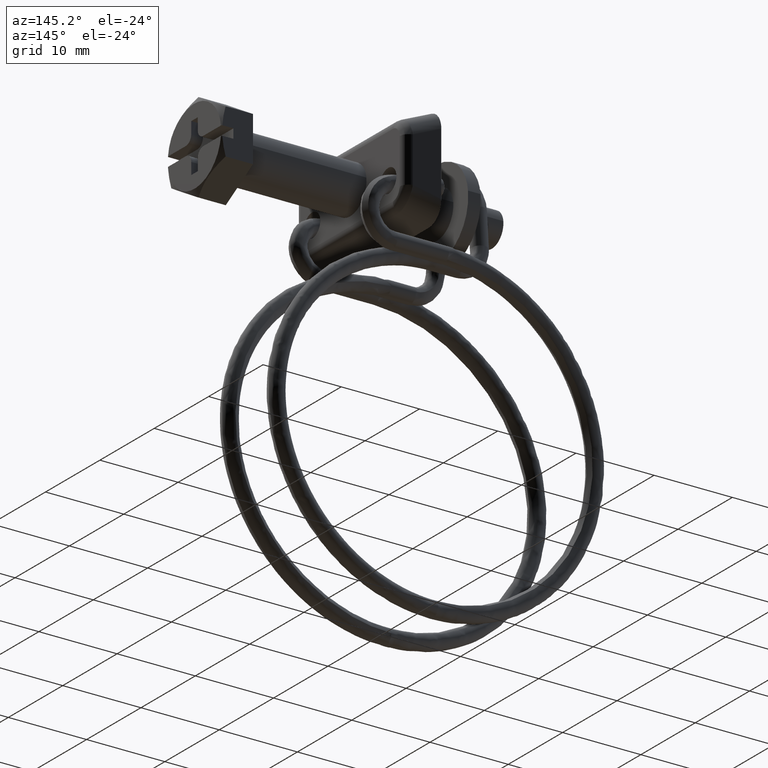
[diagram: clean part render]
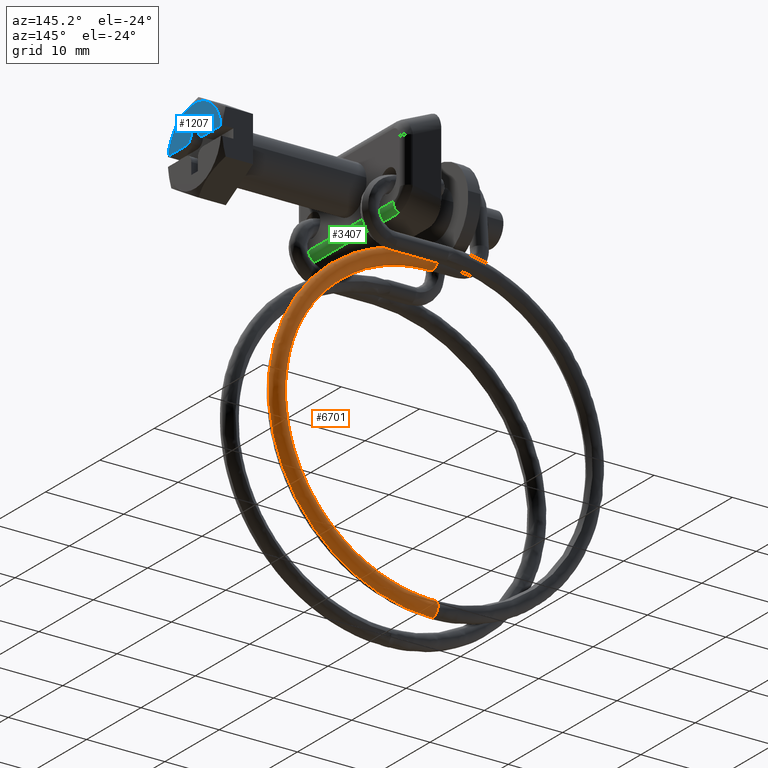
[diagram: same view with three faces highlighted in distinct colors, each labeled with its STEP entity id]
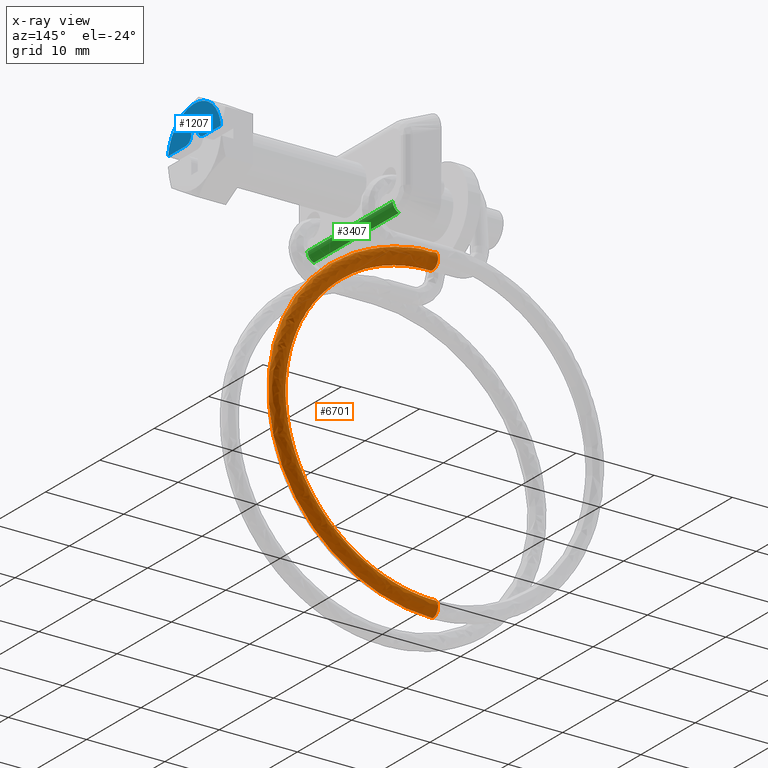
[diagram: x-ray of the same camera — body ghosted, the three highlighted faces saturated]
A machine part, auxiliary view with three faces highlighted in distinct colors.
The next image is the same camera in x-ray (body ghosted, the three faces saturated) — at least one of them is partly hidden behind the body in this view.
Their STEP definitions:

[orange] entity #6701 — the highlighted face is a freeform B-spline surface patch.
#5486=CARTESIAN_POINT('',(-23.449996893050059,4.751533273924485,-8.742256293438331));
#5487=VERTEX_POINT('',#5486);
#5493=CARTESIAN_POINT('',(-23.449996910569531,4.300002000000001,-8.850001000000328));
#5494=VERTEX_POINT('',#5493);
#5495=CARTESIAN_POINT('',(-23.449996910569531,4.300002000000001,-8.850001000000328));
#5496=CARTESIAN_POINT('',(-23.449996910569535,4.538622695376612,-8.850001000000326));
#5497=CARTESIAN_POINT('',(-23.449996893050059,4.751533273924485,-8.742256293438331));
#5505=(BOUNDED_CURVE()B_SPLINE_CURVE(2,(#5495,#5496,#5497),.UNSPECIFIED.,.F.,.U.)B_SPLINE_CURVE_WITH_KNOTS((3,3),(0.0,0.076776565671012),.UNSPECIFIED.)CURVE()GEOMETRIC_REPRESENTATION_ITEM()RATIONAL_B_SPLINE_CURVE((1.0,0.910050658204699,0.875349328788688))REPRESENTATION_ITEM(''));
#5506=EDGE_CURVE('',#5494,#5487,#5505,.T.);
#5508=CARTESIAN_POINT('',(-23.449996729084670,3.306690361544146,-7.734536767823371));
#5509=VERTEX_POINT('',#5508);
#5510=CARTESIAN_POINT('',(-23.449996729084663,3.306690361544147,-7.734536767823371));
#5511=CARTESIAN_POINT('',(-23.449996738549068,3.300002000000000,-7.792075168023835));
#5512=CARTESIAN_POINT('',(-23.449996747967901,3.300002000000000,-7.850001000000341));
#5513=CARTESIAN_POINT('',(-23.449996910569535,3.300001999999999,-8.850001000000328));
#5514=CARTESIAN_POINT('',(-23.449996910569531,4.300002000000001,-8.850001000000328));
#5522=(BOUNDED_CURVE()B_SPLINE_CURVE(2,(#5510,#5511,#5512,#5513,#5514),.UNSPECIFIED.,.F.,.U.)B_SPLINE_CURVE_WITH_KNOTS((3,2,3),(0.729999999029387,0.750000000000000,1.0),.UNSPECIFIED.)CURVE()GEOMETRIC_REPRESENTATION_ITEM()RATIONAL_B_SPLINE_CURVE((0.956886116280258,0.976568541357780,1.0,0.707106781186548,1.0))REPRESENTATION_ITEM(''));
#5523=EDGE_CURVE('',#5509,#5494,#5522,.T.);
#5525=CARTESIAN_POINT('',(-23.449997579127619,4.300001999997960,-6.850001000000157));
#5526=VERTEX_POINT('',#5525);
#5540=CARTESIAN_POINT('',(-23.449996741821160,5.299050221565347,-7.806381612256867));
#5541=VERTEX_POINT('',#5540);
#5542=CARTESIAN_POINT('',(-23.449996741821156,5.299050221565347,-7.806381612256867));
#5543=CARTESIAN_POINT('',(-23.449996627808098,5.257293741529365,-6.850001000000344));
#5544=CARTESIAN_POINT('',(-23.449997579127619,4.300001999997960,-6.850001000000157));
#5552=(BOUNDED_CURVE()B_SPLINE_CURVE(2,(#5542,#5543,#5544),.UNSPECIFIED.,.F.,.U.)B_SPLINE_CURVE_WITH_KNOTS((3,3),(0.257645461561753,0.500000000000000),.UNSPECIFIED.)CURVE()GEOMETRIC_REPRESENTATION_ITEM()RATIONAL_B_SPLINE_CURVE((0.982633425598292,0.716063996571093,1.0))REPRESENTATION_ITEM(''));
#5553=EDGE_CURVE('',#5541,#5526,#5552,.T.);
#5655=CARTESIAN_POINT('',(-23.449996893050066,4.751533273924487,-8.742256293438331));
#5656=CARTESIAN_POINT('',(-23.449996847919007,5.300002000000001,-8.464700324390263));
#5657=CARTESIAN_POINT('',(-23.449996747967901,5.300002000000000,-7.850001000000341));
#5658=CARTESIAN_POINT('',(-23.449996744419920,5.300002000000000,-7.828180921999513));
#5659=CARTESIAN_POINT('',(-23.449996741821160,5.299050221565347,-7.806381612256867));
#5667=(BOUNDED_CURVE()B_SPLINE_CURVE(2,(#5655,#5656,#5657,#5658,#5659),.UNSPECIFIED.,.F.,.U.)B_SPLINE_CURVE_WITH_KNOTS((3,2,3),(0.076776565671012,0.250000000000000,0.257645461561753),.UNSPECIFIED.)CURVE()GEOMETRIC_REPRESENTATION_ITEM()RATIONAL_B_SPLINE_CURVE((0.875349328788688,0.797056122981848,1.0,0.991042784615455,0.982633425598292))REPRESENTATION_ITEM(''));
#5668=EDGE_CURVE('',#5487,#5541,#5667,.T.);
#6563=CARTESIAN_POINT('',(-26.249919368055743,3.309339985532244,-47.792666338283702));
#6564=CARTESIAN_POINT('',(-3.165674999504132,3.309339985532244,-51.033658543090056));
#6565=CARTESIAN_POINT('',(-3.312139164683596,3.309339985532239,-27.723469423588238));
#6566=CARTESIAN_POINT('',(-3.457107784048210,3.309339985532235,-4.651300680867604));
#6567=CARTESIAN_POINT('',(-26.297860011985140,3.309339985532235,-7.914125232566569));
#6568=CARTESIAN_POINT('',(-26.248328471206236,3.308009898941750,-47.781335039311422));
#6569=CARTESIAN_POINT('',(-3.177200427381115,3.308009898941750,-51.020485732413270));
#6570=CARTESIAN_POINT('',(-3.323581372528742,3.308009898941746,-27.723541318046546));
#6571=CARTESIAN_POINT('',(-3.468467621621394,3.308009898941741,-4.664482038756585));
#6572=CARTESIAN_POINT('',(-26.296241875558557,3.308009898941742,-7.925452673746715));
#6573=CARTESIAN_POINT('',(-26.238750342011311,3.300001999995929,-47.713113994348397));
#6574=CARTESIAN_POINT('',(-3.246590241853258,3.300001999995929,-50.941177710299570));
#6575=CARTESIAN_POINT('',(-3.392470153752385,3.300001999995926,-27.723974164720598));
#6576=CARTESIAN_POINT('',(-3.536860485647806,3.300001999995923,-4.743841520085153));
#6577=CARTESIAN_POINT('',(-26.286499748183374,3.300001999995923,-7.993650492545618));
#6578=CARTESIAN_POINT('',(-26.230696641953472,3.300001999995929,-47.655750826386893));
#6579=CARTESIAN_POINT('',(-3.304936161129930,3.300001999995929,-50.874492138484193));
#6580=CARTESIAN_POINT('',(-3.450394782877265,3.300001999995926,-27.724338120688721));
#6581=CARTESIAN_POINT('',(-3.594368126415275,3.300001999995923,-4.810570361005949));
#6582=CARTESIAN_POINT('',(-26.278308151452087,3.300001999995922,-8.050994130956459));
#6583=CARTESIAN_POINT('',(-26.091661809855793,3.300001999995928,-46.665463335067543));
#6584=CARTESIAN_POINT('',(-4.312189353073431,3.300001999995929,-49.723267581559973));
#6585=CARTESIAN_POINT('',(-4.450375043733403,3.300001999995925,-27.730621264654282));
#6586=CARTESIAN_POINT('',(-4.587149720094512,3.300001999995921,-5.962541892955644));
#6587=CARTESIAN_POINT('',(-26.136892743879475,3.300001999995921,-9.040944474408633));
#6588=CARTESIAN_POINT('',(-26.091661809855790,4.300001999995929,-46.665463335067543));
#6589=CARTESIAN_POINT('',(-4.312189353073431,4.300001999995929,-49.723267581559980));
#6590=CARTESIAN_POINT('',(-4.450375043733402,4.300001999995925,-27.730621264654278));
#6591=CARTESIAN_POINT('',(-4.587149720094512,4.300001999995922,-5.962541892955645));
#6592=CARTESIAN_POINT('',(-26.136892743879478,4.300001999995922,-9.040944474408633));
#6593=CARTESIAN_POINT('',(-26.091661809855793,5.300001999995928,-46.665463335067543));
#6594=CARTESIAN_POINT('',(-4.312189353073431,5.300001999995929,-49.723267581559973));
#6595=CARTESIAN_POINT('',(-4.450375043733403,5.300001999995925,-27.730621264654282));
#6596=CARTESIAN_POINT('',(-4.587149720094512,5.300001999995920,-5.962541892955644));
#6597=CARTESIAN_POINT('',(-26.136892743879475,5.300001999995920,-9.040944474408633));
#6598=CARTESIAN_POINT('',(-26.230696641953472,5.300001999995929,-47.655750826386893));
#6599=CARTESIAN_POINT('',(-3.304936161129930,5.300001999995929,-50.874492138484193));
#6600=CARTESIAN_POINT('',(-3.450394782877265,5.300001999995925,-27.724338120688721));
#6601=CARTESIAN_POINT('',(-3.594368126415275,5.300001999995922,-4.810570361005949));
#6602=CARTESIAN_POINT('',(-26.278308151452087,5.300001999995922,-8.050994130956459));
#6603=CARTESIAN_POINT('',(-26.369731474051143,5.300001999995930,-48.646038317706250));
#6604=CARTESIAN_POINT('',(-2.297682969186426,5.300001999995929,-52.025716695408398));
#6605=CARTESIAN_POINT('',(-2.450414522021128,5.300001999995925,-27.718054976723160));
#6606=CARTESIAN_POINT('',(-2.601586532736042,5.300001999995920,-3.658598829056249));
#6607=CARTESIAN_POINT('',(-26.419723559024685,5.300001999995922,-7.061043787504289));
#6608=CARTESIAN_POINT('',(-26.369731474051132,4.289161439346738,-48.646038317706228));
#6609=CARTESIAN_POINT('',(-2.297682969186425,4.289161439346739,-52.025716695408398));
#6610=CARTESIAN_POINT('',(-2.450414522021126,4.289161439346734,-27.718054976723156));
#6611=CARTESIAN_POINT('',(-2.601586532736040,4.289161439346730,-3.658598829056249));
#6612=CARTESIAN_POINT('',(-26.419723559024689,4.289161439346732,-7.061043787504290));
#6613=CARTESIAN_POINT('',(-26.369731474051147,4.278417798394372,-48.646038317706264));
#6614=CARTESIAN_POINT('',(-2.297682969186425,4.278417798394371,-52.025716695408398));
#6615=CARTESIAN_POINT('',(-2.450414522021128,4.278417798394369,-27.718054976723174));
#6616=CARTESIAN_POINT('',(-2.601586532736040,4.278417798394362,-3.658598829056250));
#6617=CARTESIAN_POINT('',(-26.419723559024700,4.278417798394366,-7.061043787504292));
#6625=(BOUNDED_SURFACE()B_SPLINE_SURFACE(2,2,((#6563,#6568,#6573,#6578,#6583,#6588,#6593,#6598,#6603,#6608,#6613),(#6564,#6569,#6574,#6579,#6584,#6589,#6594,#6599,#6604,#6609,#6614),(#6565,#6570,#6575,#6580,#6585,#6590,#6595,#6600,#6605,#6610,#6615),(#6566,#6571,#6576,#6581,#6586,#6591,#6596,#6601,#6606,#6611,#6616),(#6567,#6572,#6577,#6582,#6587,#6592,#6597,#6602,#6607,#6612,#6617)),.UNSPECIFIED.,.F.,.F.,.U.)B_SPLINE_SURFACE_WITH_KNOTS((3,2,3),(3,1,2,2,2,1,3),(0.0,38.436924069261707,76.616359124036180),(0.0,0.025522026659387,0.158070240210830,1.814924489703211,3.471778739195592,5.128632988687974,5.154148575128889),.UNSPECIFIED.)GEOMETRIC_REPRESENTATION_ITEM()RATIONAL_B_SPLINE_SURFACE(((0.949306499144447,0.953096327438177,0.976568564840903,1.0,0.707106781186548,1.0,0.707106781186548,1.0,0.707106781186548,1.004510561049581,1.009021122099161),(0.620597386593717,0.623074939983321,0.638419624974698,0.653737636003782,0.462262315535137,0.653737636003782,0.462262315535137,0.653737636003782,0.462262315535137,0.656686359521386,0.659635083038989),(0.949306499144447,0.953096327438177,0.976568564840903,1.0,0.707106781186548,1.0,0.707106781186548,1.0,0.707106781186548,1.004510561049581,1.009021122099161),(0.622799409453069,0.625285753774309,0.640684885252008,0.656057248122035,0.463902528993676,0.656057248122035,0.463902528993676,0.656057248122035,0.463902528993676,0.659016434391709,0.661975620661383),(0.944931956134905,0.948704320346293,0.972068394250569,0.995391853933915,0.703848329854521,0.995391853933915,0.703848329854521,0.995391853933915,0.703848329854521,0.999881629659339,1.004371405384763)))REPRESENTATION_ITEM('')SURFACE());
#6626=ORIENTED_EDGE('',*,*,#5523,.T.);
#6627=ORIENTED_EDGE('',*,*,#5506,.T.);
#6628=ORIENTED_EDGE('',*,*,#5668,.T.);
#6629=ORIENTED_EDGE('',*,*,#5553,.T.);
#6630=CARTESIAN_POINT('',(-23.450020250960460,4.300001999995929,-48.850000999980317));
#6631=VERTEX_POINT('',#6630);
#6632=CARTESIAN_POINT('',(-23.450020250960463,4.300001999995929,-48.850000999980317));
#6633=CARTESIAN_POINT('',(-2.317636713922446,4.300001999995931,-48.850021378612198));
#6634=CARTESIAN_POINT('',(-2.450414522021127,4.300001999995925,-27.718054976723160));
#6635=CARTESIAN_POINT('',(-2.581534088715346,4.300001999995923,-6.850002418172166));
#6636=CARTESIAN_POINT('',(-23.449997579127622,4.300001999997960,-6.850001000000157));
#6644=(BOUNDED_CURVE()B_SPLINE_CURVE(2,(#6632,#6633,#6634,#6635,#6636),.UNSPECIFIED.,.F.,.U.)B_SPLINE_CURVE_WITH_KNOTS((3,2,3),(-3.821090300398721,-2.0,-0.194543891220019),.UNSPECIFIED.)CURVE()GEOMETRIC_REPRESENTATION_ITEM()RATIONAL_B_SPLINE_CURVE((0.943592005182663,0.684712483766678,1.0,0.687419249841216,0.939189324543638))REPRESENTATION_ITEM(''));
#6645=EDGE_CURVE('',#6631,#5526,#6644,.T.);
#6646=ORIENTED_EDGE('',*,*,#6645,.F.);
#6647=CARTESIAN_POINT('',(-23.449999999999601,5.028950006538346,-47.165464279957057));
#6648=VERTEX_POINT('',#6647);
#6649=CARTESIAN_POINT('',(-23.449999999999601,5.028950006538346,-47.165464279957057));
#6650=CARTESIAN_POINT('',(-23.450001104256788,5.200678332607465,-47.348831948192839));
#6651=CARTESIAN_POINT('',(-23.450003198855619,5.300001999995931,-47.598673610792623));
#6652=CARTESIAN_POINT('',(-23.450008394579051,5.300001999995931,-48.111800387790822));
#6653=CARTESIAN_POINT('',(-23.450011501358500,5.192228903605739,-48.371987658751941));
#6654=CARTESIAN_POINT('',(-23.450016872530298,4.821988658759210,-48.742227903593360));
#6655=CARTESIAN_POINT('',(-23.450019103847868,4.561801387795079,-48.850000999981418));
#6656=CARTESIAN_POINT('',(-23.450020250960460,4.300001999995929,-48.850000999980317));
#6657=B_SPLINE_CURVE_WITH_KNOTS('',3,(#6649,#6650,#6651,#6652,#6653,#6654,#6655,#6656),.UNSPECIFIED.,.F.,.U.,(4,2,2,4),(0.130000011021381,0.250000000000000,0.375000000000000,0.500000000000000),.UNSPECIFIED.);
#6658=EDGE_CURVE('',#6648,#6631,#6657,.T.);
#6659=ORIENTED_EDGE('',*,*,#6658,.F.);
#6660=CARTESIAN_POINT('',(-23.449999999999601,4.300001999995930,-46.850000999999800));
#6661=VERTEX_POINT('',#6660);
#6662=CARTESIAN_POINT('',(-23.449999999999601,4.300001999995930,-46.850000999999800));
#6663=CARTESIAN_POINT('',(-23.449999999999601,4.561801387795080,-46.850000999999800));
#6664=CARTESIAN_POINT('',(-23.449999999999601,4.821988658759211,-46.957774096389997));
#6665=CARTESIAN_POINT('',(-23.449999999999601,5.014513602401641,-47.150299040032422));
#6666=CARTESIAN_POINT('',(-23.449999999999601,5.021794667833571,-47.157823969218740));
#6667=CARTESIAN_POINT('',(-23.449999999999601,5.028950006538346,-47.165464279957057));
#6668=B_SPLINE_CURVE_WITH_KNOTS('',3,(#6662,#6663,#6664,#6665,#6666,#6667),.UNSPECIFIED.,.F.,.U.,(4,2,4),(0.0,0.125000000000000,0.130000011021381),.UNSPECIFIED.);
#6669=EDGE_CURVE('',#6661,#6648,#6668,.T.);
#6670=ORIENTED_EDGE('',*,*,#6669,.F.);
#6671=CARTESIAN_POINT('',(-23.449999999976580,3.306810287594581,-47.965450863443273));
#6672=VERTEX_POINT('',#6671);
#6673=CARTESIAN_POINT('',(-23.449999999976580,3.306810287594581,-47.965450863443273));
#6674=CARTESIAN_POINT('',(-23.449999999976971,3.302226016636949,-47.927164010543642));
#6675=CARTESIAN_POINT('',(-23.449999999977390,3.299886312450008,-47.888606818831782));
#6676=CARTESIAN_POINT('',(-23.449999999980850,3.299904328775286,-47.588213312158757));
#6677=CARTESIAN_POINT('',(-23.449999999984950,3.407698784938896,-47.328023482524323));
#6678=CARTESIAN_POINT('',(-23.449999999993011,3.777981005013296,-46.957778209498528));
#6679=CARTESIAN_POINT('',(-23.449999999996919,4.038188632955446,-46.850002674562049));
#6680=CARTESIAN_POINT('',(-23.449999999999601,4.300001999995930,-46.850000999999800));
#6681=B_SPLINE_CURVE_WITH_KNOTS('',3,(#6673,#6674,#6675,#6676,#6677,#6678,#6679,#6680),.UNSPECIFIED.,.F.,.U.,(4,2,2,4),(0.731573696066977,0.750000000000000,0.875000000000000,1.0),.UNSPECIFIED.);
#6682=EDGE_CURVE('',#6672,#6661,#6681,.T.);
#6683=ORIENTED_EDGE('',*,*,#6682,.F.);
#6684=CARTESIAN_POINT('',(-23.449999999976576,3.306810287594581,-47.965450863443266));
#6685=CARTESIAN_POINT('',(-3.207747848258828,3.306810287589673,-47.965450863420287));
#6686=CARTESIAN_POINT('',(-3.334932832769838,3.306749947808168,-27.723605503069354));
#6687=CARTESIAN_POINT('',(-3.460529533011526,3.306690361548991,-7.734540018357994));
#6688=CARTESIAN_POINT('',(-23.449996729084660,3.306690361544146,-7.734536767823371));
#6696=(BOUNDED_CURVE()B_SPLINE_CURVE(2,(#6684,#6685,#6686,#6687,#6688),.UNSPECIFIED.,.F.,.U.)B_SPLINE_CURVE_WITH_KNOTS((3,2,3),(-3.821089097926426,-2.0,-0.194544008698820),.UNSPECIFIED.)CURVE()GEOMETRIC_REPRESENTATION_ITEM()RATIONAL_B_SPLINE_CURVE((0.902909763856804,0.655192069877949,0.956886118190660,0.657781957012436,0.898697195656550))REPRESENTATION_ITEM(''));
#6697=EDGE_CURVE('',#6672,#5509,#6696,.T.);
#6698=ORIENTED_EDGE('',*,*,#6697,.T.);
#6699=EDGE_LOOP('',(#6626,#6627,#6628,#6629,#6646,#6659,#6670,#6683,#6698));
#6700=FACE_OUTER_BOUND('',#6699,.T.);
#6701=ADVANCED_FACE('',(#6700),#6625,.T.);

[blue] entity #1207 — the highlighted face is a freeform B-spline surface patch.
#759=CARTESIAN_POINT('',(4.0,0.599999000000025,3.099999000000110));
#760=VERTEX_POINT('',#759);
#761=CARTESIAN_POINT('',(4.0,-0.599998000000198,3.099999000000110));
#762=VERTEX_POINT('',#761);
#763=CARTESIAN_POINT('',(4.0,0.599999000000025,3.099999000000110));
#764=CARTESIAN_POINT('',(4.0,-0.599998000000198,3.099999000000110));
#765=QUASI_UNIFORM_CURVE('',1,(#763,#764),.UNSPECIFIED.,.F.,.U.);
#766=EDGE_CURVE('',#760,#762,#765,.T.);
#787=CARTESIAN_POINT('',(4.0,0.599999000000025,1.600000000000000));
#788=VERTEX_POINT('',#787);
#789=CARTESIAN_POINT('',(4.0,0.599999000000025,1.600000000000000));
#790=CARTESIAN_POINT('',(4.0,0.599999000000025,3.099999000000110));
#791=QUASI_UNIFORM_CURVE('',1,(#789,#790),.UNSPECIFIED.,.F.,.U.);
#792=EDGE_CURVE('',#788,#760,#791,.T.);
#818=CARTESIAN_POINT('',(4.0,1.599999000000025,0.600000000000108));
#819=VERTEX_POINT('',#818);
#820=CARTESIAN_POINT('',(4.0,0.599999000000025,1.600000000000000));
#821=CARTESIAN_POINT('',(4.000000000000000,0.599999000000025,0.600000000000000));
#822=CARTESIAN_POINT('',(4.0,1.599999000000025,0.600000000000108));
#830=(BOUNDED_CURVE()B_SPLINE_CURVE(2,(#820,#821,#822),.UNSPECIFIED.,.F.,.U.)CURVE()GEOMETRIC_REPRESENTATION_ITEM()QUASI_UNIFORM_CURVE()RATIONAL_B_SPLINE_CURVE((1.0,0.707106781186548,1.0))REPRESENTATION_ITEM(''));
#831=EDGE_CURVE('',#788,#819,#830,.T.);
#855=CARTESIAN_POINT('',(4.0,4.863124347857450,0.600000000000108));
#856=VERTEX_POINT('',#855);
#864=CARTESIAN_POINT('',(4.0,4.863124347857450,0.600000000000108));
#865=CARTESIAN_POINT('',(4.0,1.599999000000025,0.600000000000108));
#866=QUASI_UNIFORM_CURVE('',1,(#864,#865),.UNSPECIFIED.,.F.,.U.);
#867=EDGE_CURVE('',#856,#819,#866,.T.);
#1099=CARTESIAN_POINT('',(4.0,-1.599998000000085,0.600000000000000));
#1100=VERTEX_POINT('',#1099);
#1106=CARTESIAN_POINT('',(4.0,-4.863124347857450,0.600000000000108));
#1107=VERTEX_POINT('',#1106);
#1108=CARTESIAN_POINT('',(4.0,-1.599998000000085,0.600000000000000));
#1109=CARTESIAN_POINT('',(4.0,-4.863124347857450,0.600000000000108));
#1110=QUASI_UNIFORM_CURVE('',1,(#1108,#1109),.UNSPECIFIED.,.F.,.U.);
#1111=EDGE_CURVE('',#1100,#1107,#1110,.T.);
#1137=CARTESIAN_POINT('',(4.0,-0.599998000000085,1.600000000000000));
#1138=VERTEX_POINT('',#1137);
#1139=CARTESIAN_POINT('',(4.0,-1.599998000000085,0.600000000000000));
#1140=CARTESIAN_POINT('',(4.000000000000000,-0.599998000000085,0.600000000000000));
#1141=CARTESIAN_POINT('',(4.0,-0.599998000000085,1.600000000000000));
#1149=(BOUNDED_CURVE()B_SPLINE_CURVE(2,(#1139,#1140,#1141),.UNSPECIFIED.,.F.,.U.)CURVE()GEOMETRIC_REPRESENTATION_ITEM()QUASI_UNIFORM_CURVE()RATIONAL_B_SPLINE_CURVE((1.0,0.707106781186548,1.0))REPRESENTATION_ITEM(''));
#1150=EDGE_CURVE('',#1100,#1138,#1149,.T.);
#1167=CARTESIAN_POINT('',(4.0,-0.599998000000198,3.099999000000110));
#1168=CARTESIAN_POINT('',(4.0,-0.599998000000085,1.600000000000000));
#1169=QUASI_UNIFORM_CURVE('',1,(#1167,#1168),.UNSPECIFIED.,.F.,.U.);
#1170=EDGE_CURVE('',#762,#1138,#1169,.T.);
#1178=CARTESIAN_POINT('',(4.0,-5.348950542660116,0.385215133674923));
#1179=CARTESIAN_POINT('',(4.0,5.348950716578997,0.385215133674923));
#1180=CARTESIAN_POINT('',(4.0,-5.348950542660116,5.114782472336816));
#1181=CARTESIAN_POINT('',(4.0,5.348950716578997,5.114782472336816));
#1182=B_SPLINE_SURFACE_WITH_KNOTS('',1,1,((#1178,#1180),(#1179,#1181)),.UNSPECIFIED.,.F.,.F.,.U.,(2,2),(2,2),(0.0,10.697901259239110),(0.0,4.729567338661893),.UNSPECIFIED.);
#1183=ORIENTED_EDGE('',*,*,#1111,.F.);
#1184=ORIENTED_EDGE('',*,*,#1150,.T.);
#1185=ORIENTED_EDGE('',*,*,#1170,.F.);
#1186=ORIENTED_EDGE('',*,*,#766,.F.);
#1187=ORIENTED_EDGE('',*,*,#792,.F.);
#1188=ORIENTED_EDGE('',*,*,#831,.T.);
#1189=ORIENTED_EDGE('',*,*,#867,.F.);
#1190=CARTESIAN_POINT('',(4.0,-4.863124347857444,0.600000000000106));
#1191=CARTESIAN_POINT('',(4.000000000000001,-4.332601479348219,4.899997798236649));
#1192=CARTESIAN_POINT('',(4.0,0.0,4.899997798236650));
#1193=CARTESIAN_POINT('',(4.000000000000001,4.332601479348219,4.899997798236649));
#1194=CARTESIAN_POINT('',(4.0,4.863124347857444,0.600000000000107));
#1202=(BOUNDED_CURVE()B_SPLINE_CURVE(2,(#1190,#1191,#1192,#1193,#1194),.UNSPECIFIED.,.F.,.U.)B_SPLINE_CURVE_WITH_KNOTS((3,2,3),(0.0,0.500000000000000,1.0),.UNSPECIFIED.)CURVE()GEOMETRIC_REPRESENTATION_ITEM()RATIONAL_B_SPLINE_CURVE((1.0,0.749149195625625,1.0,0.749149195625625,1.0))REPRESENTATION_ITEM(''));
#1203=EDGE_CURVE('',#1107,#856,#1202,.T.);
#1204=ORIENTED_EDGE('',*,*,#1203,.F.);
#1205=EDGE_LOOP('',(#1183,#1184,#1185,#1186,#1187,#1188,#1189,#1204));
#1206=FACE_OUTER_BOUND('',#1205,.T.);
#1207=ADVANCED_FACE('',(#1206),#1182,.T.);

[green] entity #3407 — the highlighted face is a freeform B-spline surface patch.
#3255=CARTESIAN_POINT('',(-34.700000000000003,7.837173833659421,-4.168399938202366));
#3256=VERTEX_POINT('',#3255);
#3257=CARTESIAN_POINT('',(-35.478652022990950,7.837173833659421,-5.291995008621631));
#3258=VERTEX_POINT('',#3257);
#3259=CARTESIAN_POINT('',(-34.700000000000003,7.837173833659421,-4.168399938202366));
#3260=CARTESIAN_POINT('',(-34.699999999999996,7.837173833659421,-5.000000620858016));
#3261=CARTESIAN_POINT('',(-35.478652022990957,7.837173833659421,-5.291995008621594));
#3269=(BOUNDED_CURVE()B_SPLINE_CURVE(2,(#3259,#3260,#3261),.UNSPECIFIED.,.F.,.U.)CURVE()GEOMETRIC_REPRESENTATION_ITEM()QUASI_UNIFORM_CURVE()RATIONAL_B_SPLINE_CURVE((1.0,0.821925578800842,1.0))REPRESENTATION_ITEM(''));
#3270=EDGE_CURVE('',#3256,#3258,#3269,.T.);
#3363=CARTESIAN_POINT('',(-35.519234412313871,-8.229032525342229,-5.306388324449798));
#3364=CARTESIAN_POINT('',(-35.519234412313871,8.238828992634460,-5.306388324449798));
#3365=CARTESIAN_POINT('',(-34.649913292473613,-8.229032525342229,-5.015517546606942));
#3366=CARTESIAN_POINT('',(-34.649913292473613,8.238828992634460,-5.015517546606942));
#3367=CARTESIAN_POINT('',(-34.701933759771748,-8.229032525342230,-4.100302331597218));
#3368=CARTESIAN_POINT('',(-34.701933759771748,8.238828992634460,-4.100302331597218));
#3376=(BOUNDED_SURFACE()B_SPLINE_SURFACE(1,2,((#3363,#3365,#3367),(#3364,#3366,#3368)),.UNSPECIFIED.,.F.,.F.,.U.)B_SPLINE_SURFACE_WITH_KNOTS((2,2),(3,3),(0.0,16.467861517976690),(0.0,0.982392160871811),.UNSPECIFIED.)GEOMETRIC_REPRESENTATION_ITEM()RATIONAL_B_SPLINE_SURFACE(((1.0,0.791743426154121,0.992666103500668),(1.0,0.791743426154121,0.992666103500668)))REPRESENTATION_ITEM('')SURFACE());
#3377=CARTESIAN_POINT('',(-34.700000000000003,-7.837173833659261,-4.168399938202345));
#3378=VERTEX_POINT('',#3377);
#3379=CARTESIAN_POINT('',(-35.478652022990900,-7.837173833659261,-5.291995008621610));
#3380=VERTEX_POINT('',#3379);
#3381=CARTESIAN_POINT('',(-34.700000000000003,-7.837173833659261,-4.168399938202345));
#3382=CARTESIAN_POINT('',(-34.700000000000003,-7.837173833659263,-5.000000620857962));
#3383=CARTESIAN_POINT('',(-35.478652022990921,-7.837173833659261,-5.291995008621558));
#3391=(BOUNDED_CURVE()B_SPLINE_CURVE(2,(#3381,#3382,#3383),.UNSPECIFIED.,.F.,.U.)CURVE()GEOMETRIC_REPRESENTATION_ITEM()QUASI_UNIFORM_CURVE()RATIONAL_B_SPLINE_CURVE((1.0,0.821925578800853,1.0))REPRESENTATION_ITEM(''));
#3392=EDGE_CURVE('',#3378,#3380,#3391,.T.);
#3393=ORIENTED_EDGE('',*,*,#3392,.T.);
#3394=CARTESIAN_POINT('',(-35.478652022990950,7.837173833659421,-5.291995008621631));
#3395=CARTESIAN_POINT('',(-35.478652022990900,-7.837173833659261,-5.291995008621610));
#3396=QUASI_UNIFORM_CURVE('',1,(#3394,#3395),.UNSPECIFIED.,.F.,.U.);
#3397=EDGE_CURVE('',#3258,#3380,#3396,.T.);
#3398=ORIENTED_EDGE('',*,*,#3397,.F.);
#3399=ORIENTED_EDGE('',*,*,#3270,.F.);
#3400=CARTESIAN_POINT('',(-34.700000000000003,-7.837173833659261,-4.168399938202345));
#3401=CARTESIAN_POINT('',(-34.700000000000003,7.837173833659421,-4.168399938202366));
#3402=QUASI_UNIFORM_CURVE('',1,(#3400,#3401),.UNSPECIFIED.,.F.,.U.);
#3403=EDGE_CURVE('',#3378,#3256,#3402,.T.);
#3404=ORIENTED_EDGE('',*,*,#3403,.F.);
#3405=EDGE_LOOP('',(#3393,#3398,#3399,#3404));
#3406=FACE_OUTER_BOUND('',#3405,.T.);
#3407=ADVANCED_FACE('',(#3406),#3376,.T.);